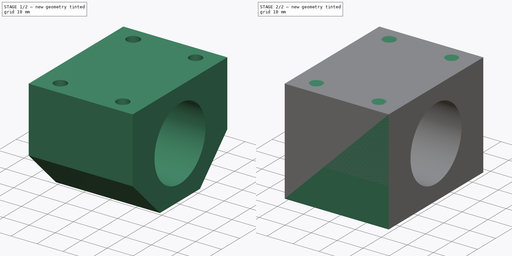
[diagram: build sequence overview — one tinted view per stage of 2, left to right]
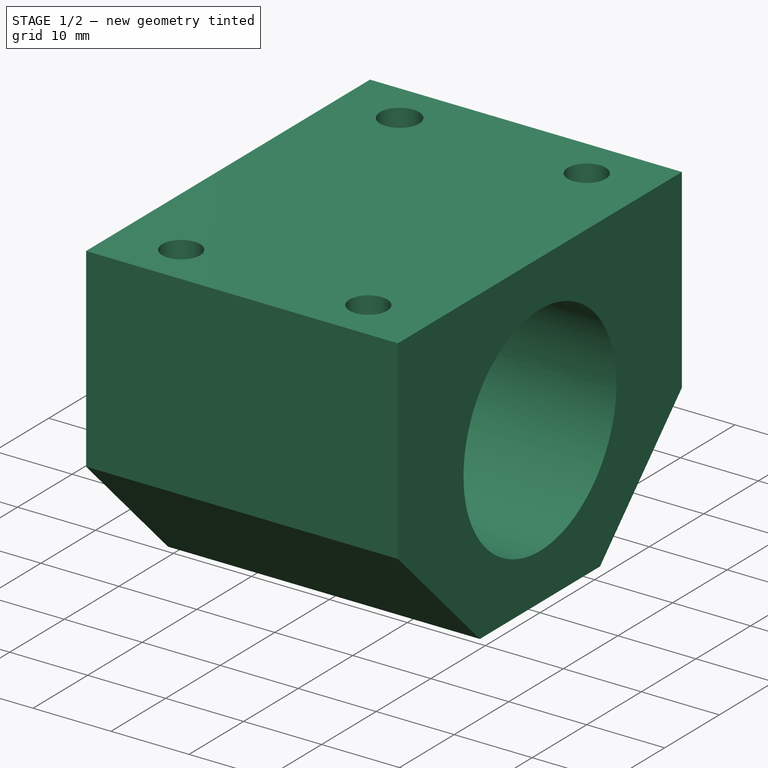
[diagram: stage 1 of 2 — iso view after this stage's code; geometry added in this stage tinted green]
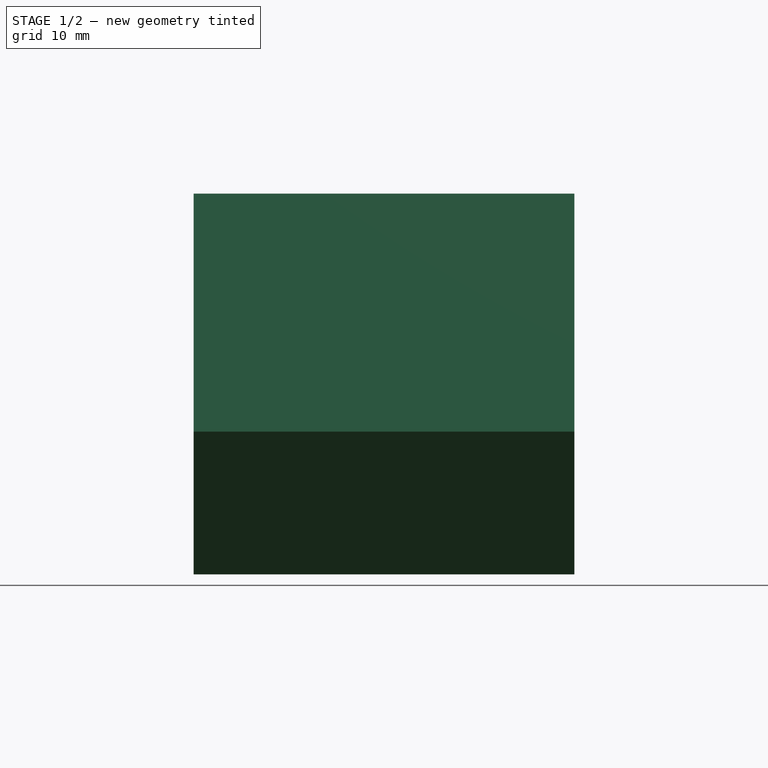
[diagram: stage 1 of 2 — front view after this stage's code; geometry added in this stage tinted green]
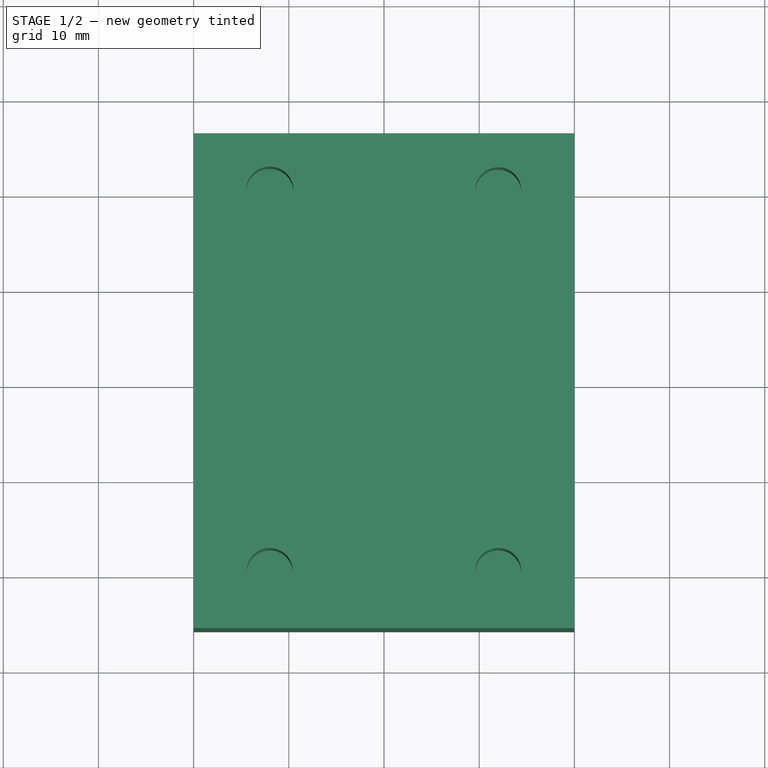
[diagram: stage 1 of 2 — top view after this stage's code; geometry added in this stage tinted green]
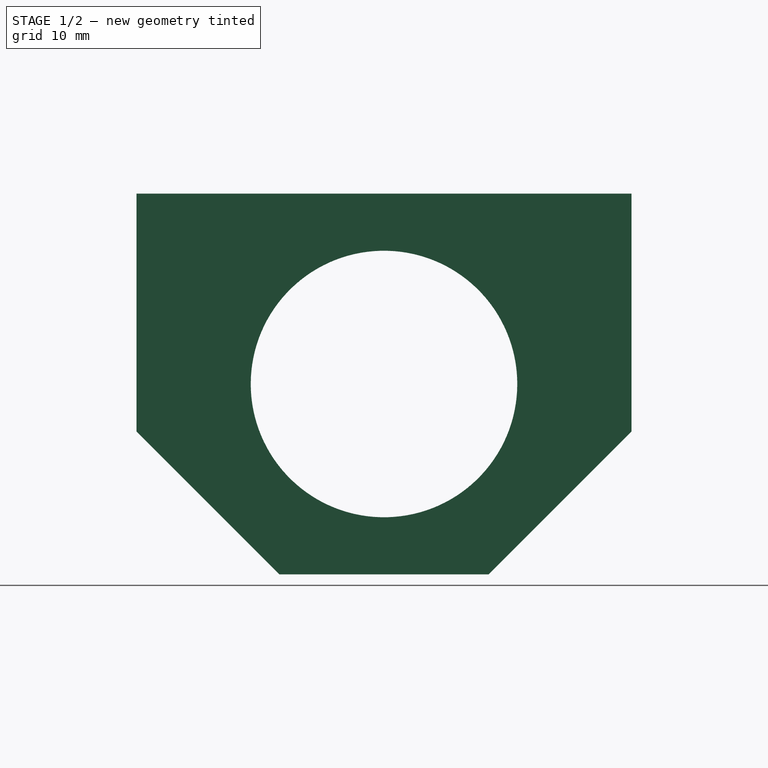
[diagram: stage 1 of 2 — right view after this stage's code; geometry added in this stage tinted green]
FCSTD DOCUMENT  (FreeCAD 0.19R24267 +99 (Git))
Label: SupportoChiocciola
License: All rights reserved
LicenseURL: http://en.wikipedia.org/wiki/All_rights_reserved
objects: Sketcher::SketchObject×5, PartDesign::FeatureBase×1, PartDesign::Pad×1, PartDesign::Pocket×1, PartDesign::Chamfer×1, PartDesign::Body×1
note: 13 computed .brp shape members not serialized (recipe doc carries the construction recipe); baked Part::Feature solids carry a one-line shape summary decoded from their .brp

FEATURE [Sketcher::SketchObject] Sketch
  FullyConstrained = true
  MapMode = 5
  Support = -> [XY_Plane]
  sketch-geometry (4):
    g0: LineSegment StartX=-20 StartY=26 StartZ=0 EndX=20 EndY=26 EndZ=0
    g1: LineSegment StartX=20 StartY=26 StartZ=0 EndX=20 EndY=-26 EndZ=0
    g2: LineSegment StartX=20 StartY=-26 StartZ=0 EndX=-20 EndY=-26 EndZ=0
    g3: LineSegment StartX=-20 StartY=-26 StartZ=0 EndX=-20 EndY=26 EndZ=0
  constraints (12):
    c: Coincident(g0,g1)
    c: Coincident(g1,g2)
    c: Coincident(g2,g3)
    c: Coincident(g3,g0)
    c: Horizontal(g0)
    c: Horizontal(g2)
    c: Vertical(g1)
    c: Vertical(g3)
    c: DistanceX(g0,g0) = 40
    c: DistanceY(g3,g3) = 52
    c: DistanceX(g2,g-1) = 20
    c: DistanceY(g1,g-1) = 26
FEATURE [Sketcher::SketchObject] Sketch004
  FullyConstrained = true
  MapMode = 5
  Placement = pos=(-20,0,0) rot=(0.57735,-0.57735,-0.57735;2.0944rad)
  sketch-geometry (1):
    g0: Circle CenterX=0 CenterY=20 CenterZ=0 NormalX=0 NormalY=0 NormalZ=1 AngleXU=0 Radius=19
  constraints (3):
    c: PointOnObject(g0,g-2)
    c: Radius(g0) = 19
    c: DistanceY(g-1,g0) = 20
FEATURE [PartDesign::FeatureBase] BaseFeature
FEATURE [Sketcher::SketchObject] Sketch002
  FullyConstrained = true
  MapMode = 45
  Placement = pos=(2.9e-15,2e-16,20) rot=(0.707107,0,0.707107;3.14159rad)
  Support = -> [Pocket]
FEATURE [Sketcher::SketchObject] Sketch003
  FullyConstrained = false
  MapMode = 5
  Placement = pos=(0,0,40) rot=(0,0,1;0rad)
  Support = -> [Pocket]
  sketch-geometry (7):
    g0: Circle CenterX=-12 CenterY=20 CenterZ=0 NormalX=0 NormalY=0 NormalZ=1 AngleXU=0 Radius=2.5
    g1: Circle CenterX=12 CenterY=20 CenterZ=0 NormalX=0 NormalY=0 NormalZ=1 AngleXU=0 Radius=2.42261
    g2: LineSegment StartX=-12 StartY=20 StartZ=0 EndX=12 EndY=20 EndZ=0
    g3: Circle CenterX=-12 CenterY=-20 CenterZ=0 NormalX=0 NormalY=0 NormalZ=1 AngleXU=0 Radius=2.42261
    g4: LineSegment StartX=-12 StartY=20 StartZ=0 EndX=-12 EndY=-20 EndZ=0
    g5: Circle CenterX=12 CenterY=-20 CenterZ=0 NormalX=0 NormalY=0 NormalZ=1 AngleXU=0 Radius=2.42261
    g6: LineSegment StartX=-12 StartY=-20 StartZ=0 EndX=12 EndY=-20 EndZ=0
  constraints (15):
    c: DistanceX(g0,g-1) = 12
    c: DistanceY(g-1,g0) = 20
    c: Coincident(g0,g2)
    c: Coincident(g1,g2)
    c: Distance(g2) = 24
    c: Angle(g2) = 0
    c: Coincident(g0,g4)
    c: Coincident(g3,g4)
    c: Distance(g4) = 40
    c: Perpendicular(g4,g2)
    c: Coincident(g3,g6)
    c: Coincident(g5,g6)
    c: Equal(g2,g6)
    c: Parallel(g6,g2)
    c: Radius(g0) = 2.5
FEATURE [PartDesign::Chamfer] Chamfer
  Angle = 45
  Base = -> BaseFeature [Edge15,Edge3]
  BaseFeature = -> BaseFeature
  ChamferType = 0
  FlipDirection = false
  Size = 15
  Size2 = 1
  SupportTransform = false
FEATURE [PartDesign::Body] Body
  Group = -> [BaseFeature,Sketch,Pad,Sketch001,Pocket,Sketch003,Sketch002,Sketch004,Chamfer]
  Origin = -> Origin
  Tip = -> Chamfer
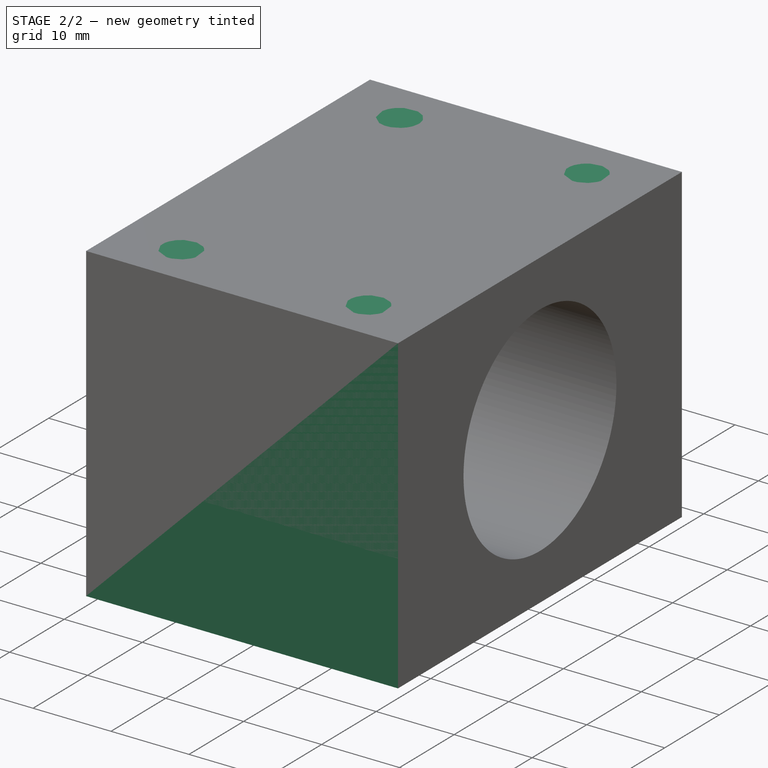
[diagram: stage 2 of 2 — iso view after this stage's code; geometry added in this stage tinted green]
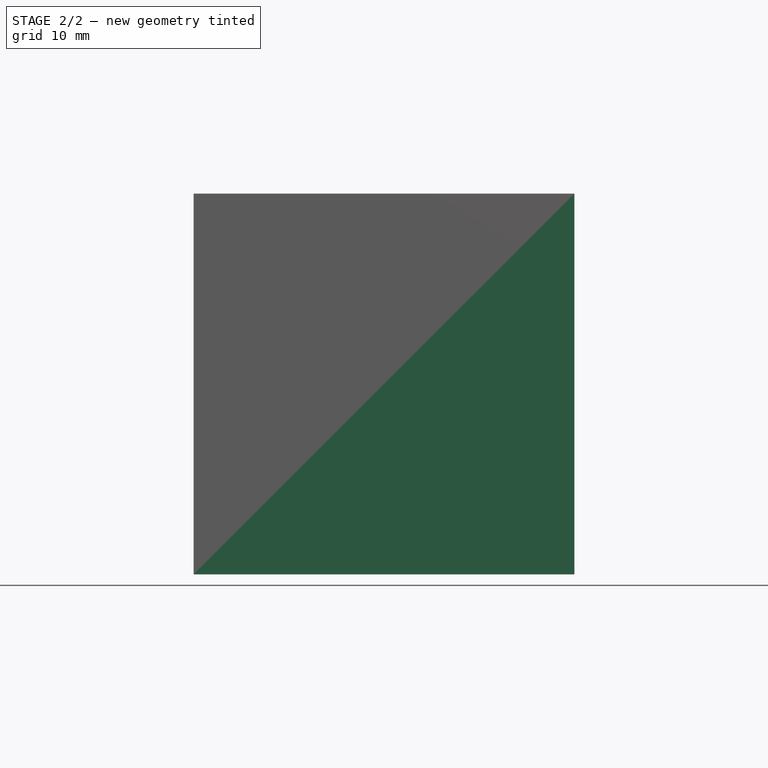
[diagram: stage 2 of 2 — front view after this stage's code; geometry added in this stage tinted green]
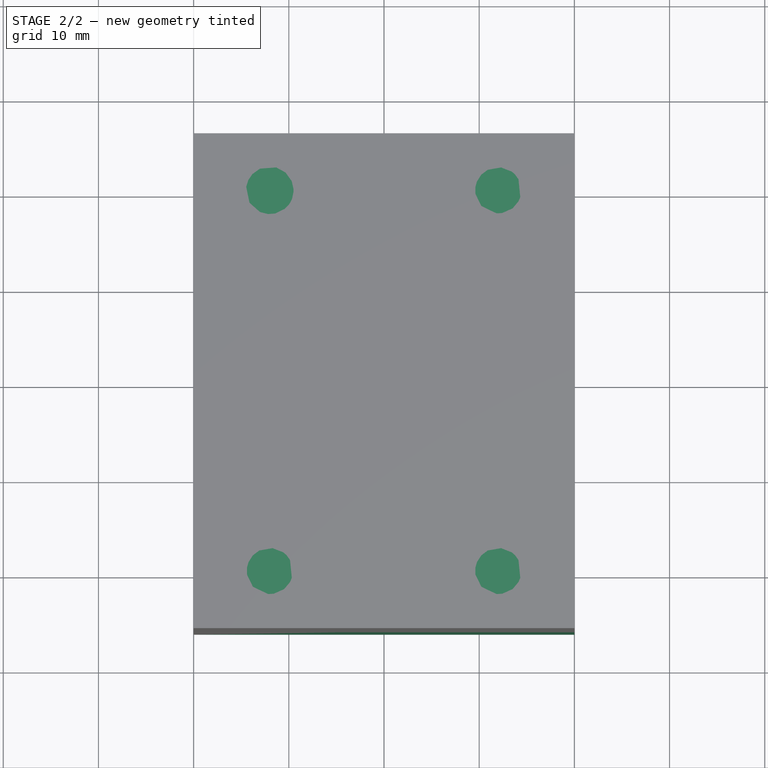
[diagram: stage 2 of 2 — top view after this stage's code; geometry added in this stage tinted green]
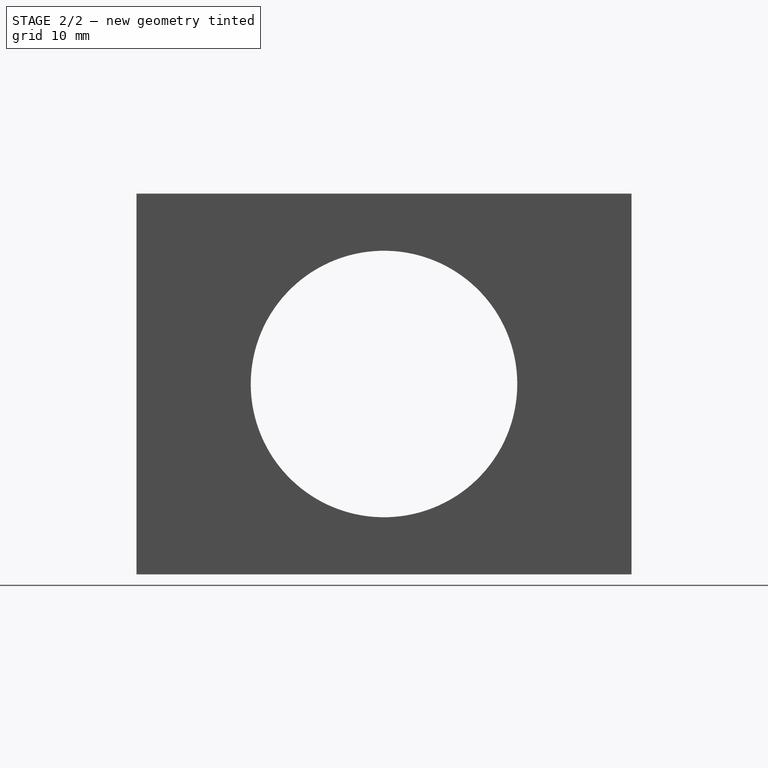
[diagram: stage 2 of 2 — right view after this stage's code; geometry added in this stage tinted green]
FEATURE [PartDesign::Pad] Pad
  BaseFeature = -> BaseFeature
  Direction = (1,1,1)
  Length = 40
  Length2 = 100
  Profile = -> Sketch
  Type = 0
FEATURE [Sketcher::SketchObject] Sketch001
  FullyConstrained = true
  MapMode = 5
  Placement = pos=(-20,0,0) rot=(0.57735,-0.57735,-0.57735;2.0944rad)
  Support = -> [Pad]
  sketch-geometry (1):
    g0: Circle CenterX=0 CenterY=20 CenterZ=0 NormalX=0 NormalY=0 NormalZ=1 AngleXU=0 Radius=14
  constraints (3):
    c: Radius(g0) = 14
    c: PointOnObject(g0,g-2)
    c: DistanceY(g-1,g0) = 20
FEATURE [PartDesign::Pocket] Pocket
  BaseFeature = -> Pad
  Length = 5
  Length2 = 100
  Profile = -> Sketch001
  Type = 1
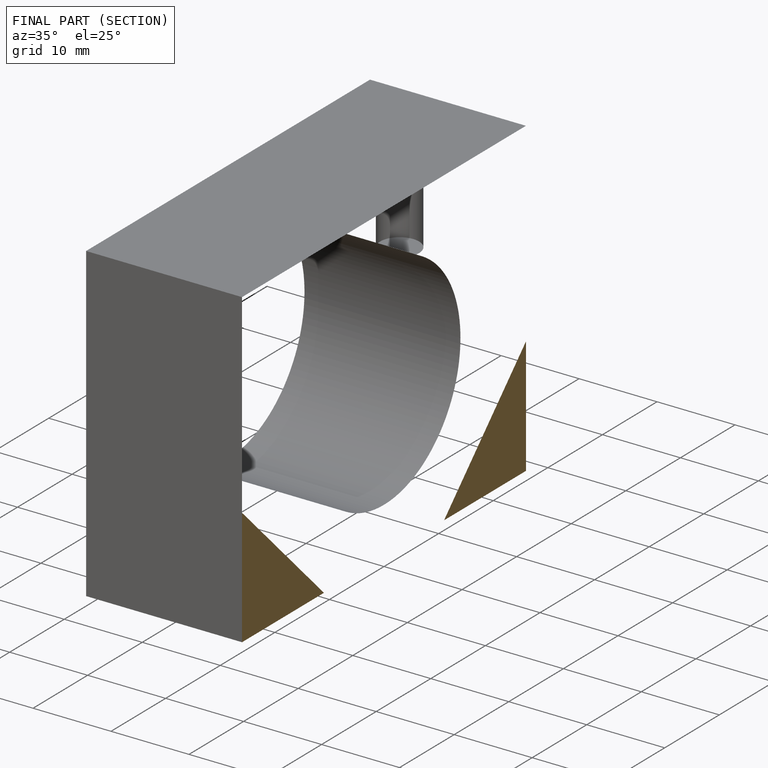
[diagram: finished part — half-section view (interior)]
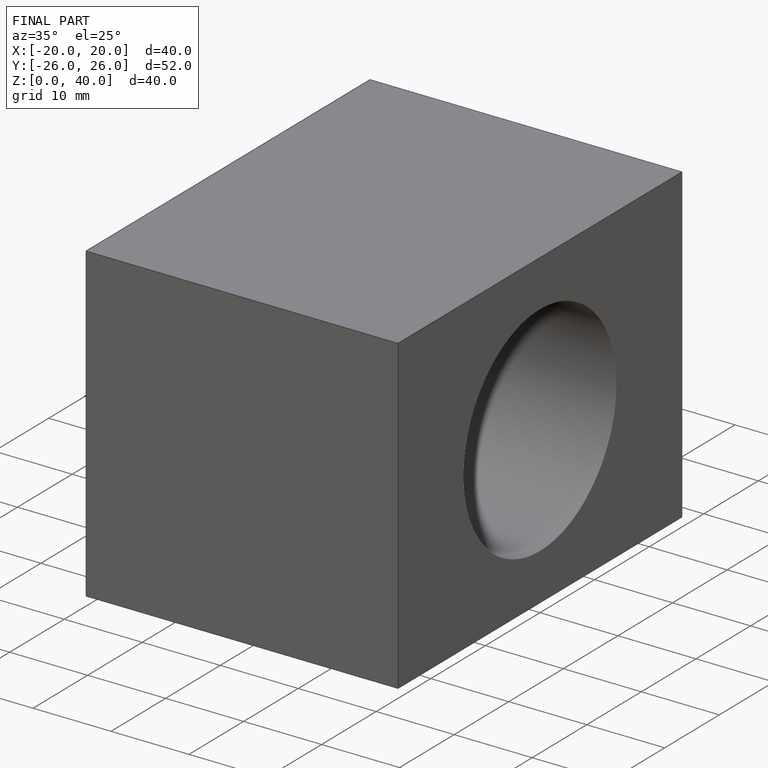
[diagram: finished part — iso view with bounding-box wireframe]
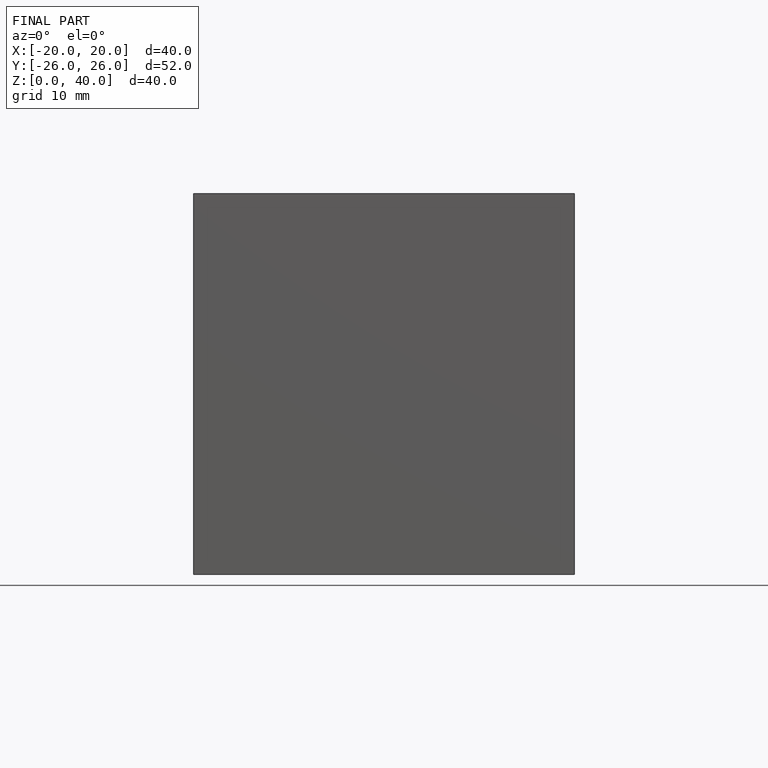
[diagram: finished part — front view with bounding-box wireframe]
